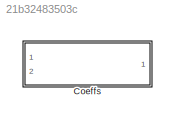
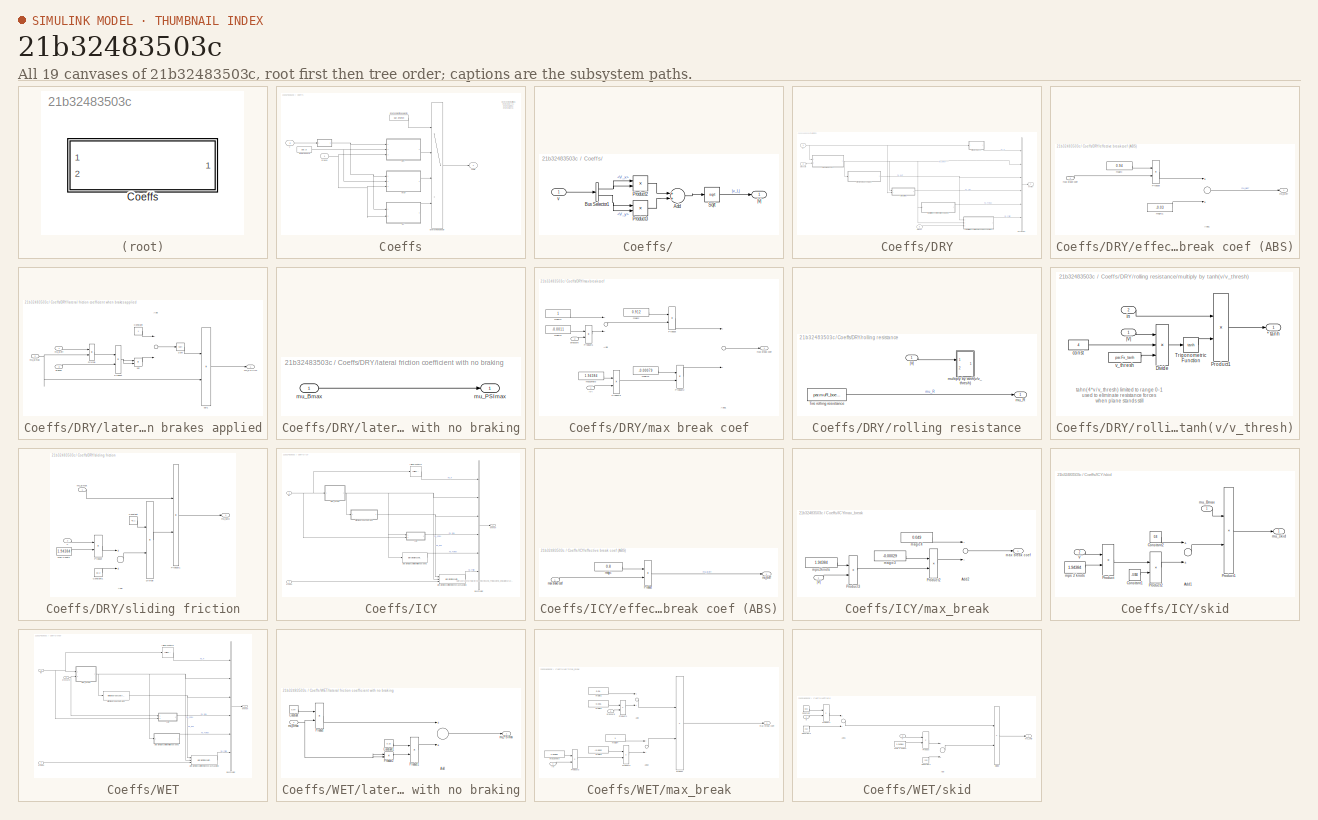
[diagram: thumbnail index - all 19 canvases of the model, root first then tree order]
MODEL slx_21b32483503c
KIND library
BLOCK [SubSystem] Coeffs
  FunctionWithSeparateData = off
  MaskHideContents = off
  MinAlgLoopOccurrences = off
  Opaque = off
  Ports = [2, 1]
  PropExecContextOutsideSubsystem = off
  RTWSystemCode = Auto
  RequestExecContextInheritance = off
BLOCK [SubSystem] Coeffs/   
  FunctionWithSeparateData = off
  MaskHideContents = off
  MinAlgLoopOccurrences = off
  Opaque = off
  Ports = [1, 1]
  PropExecContextOutsideSubsystem = off
  RTWSystemCode = Auto
  RequestExecContextInheritance = off
BLOCK [Sum] Coeffs/   /Add
  InputSameDT = off
  OutDataTypeStr = Inherit: Inherit via internal rule
  Ports = [2, 1]
  SaturateOnIntegerOverflow = off
BLOCK [BusSelector] Coeffs/   /Bus Selector1
  OutputSignals = V_x,V_y
  Ports = [1, 2]
BLOCK [Product] Coeffs/   /Product2
  InputSameDT = off
  OutDataTypeStr = Inherit: Inherit via internal rule
  Ports = [2, 1]
  RndMeth = Floor
  SaturateOnIntegerOverflow = off
BLOCK [Product] Coeffs/   /Product3
  InputSameDT = off
  OutDataTypeStr = Inherit: Inherit via internal rule
  Ports = [2, 1]
  RndMeth = Floor
  SaturateOnIntegerOverflow = off
BLOCK [Sqrt] Coeffs/   /Sqrt
BLOCK [Inport] Coeffs/   /v
  IconDisplay = Port number
BLOCK [Outport] Coeffs/   /|v|
  IconDisplay = Port number
BLOCK [SubSystem] Coeffs/DRY
  FunctionWithSeparateData = off
  MaskHideContents = off
  MinAlgLoopOccurrences = off
  Opaque = off
  Ports = [3, 1]
  PropExecContextOutsideSubsystem = off
  RTWSystemCode = Auto
  RequestExecContextInheritance = off
BLOCK [BusCreator] Coeffs/DRY/Bus Creator
  DisplayOption = bar
  Inputs = 6
  Ports = [6, 1]
BLOCK [Inport] Coeffs/DRY/brakes
  IconDisplay = Port number
  Port = 3
BLOCK [SubSystem] Coeffs/DRY/effective break coef (ABS)
  FunctionWithSeparateData = off
  MaskHideContents = off
  MinAlgLoopOccurrences = off
  Opaque = off
  Ports = [1, 1]
  PropExecContextOutsideSubsystem = off
  RTWSystemCode = Auto
  RequestExecContextInheritance = off
BLOCK [Sum] Coeffs/DRY/effective break coef (ABS)/Add1
  InputSameDT = off
  OutDataTypeStr = Inherit: Inherit via internal rule
  Ports = [2, 1]
  SaturateOnIntegerOverflow = off
BLOCK [Product] Coeffs/DRY/effective break coef (ABS)/Product
  InputSameDT = off
  OutDataTypeStr = Inherit: Inherit via internal rule
  Ports = [2, 1]
  RndMeth = Floor
  SaturateOnIntegerOverflow = off
BLOCK [Constant] Coeffs/DRY/effective break coef (ABS)/magic
  Value = 0.94
BLOCK [Constant] Coeffs/DRY/effective break coef (ABS)/magic1
  Value = -0.03
BLOCK [Inport] Coeffs/DRY/effective break coef (ABS)/max brake coef
  IconDisplay = Port number
BLOCK [Outport] Coeffs/DRY/effective break coef (ABS)/mu_Beff
  IconDisplay = Port number
BLOCK [Outport] Coeffs/DRY/environ
  IconDisplay = Port number
BLOCK [SubSystem] Coeffs/DRY/lateral friction coefficient when brakes applied
  FunctionWithSeparateData = off
  MaskHideContents = off
  MinAlgLoopOccurrences = off
  Opaque = off
  Ports = [3, 1]
  PropExecContextOutsideSubsystem = off
  RTWSystemCode = Auto
  RequestExecContextInheritance = off
BLOCK [Sum] Coeffs/DRY/lateral friction coefficient when brakes applied/Add
  InputSameDT = off
  Inputs = +-
  OutDataTypeStr = Inherit: Inherit via internal rule
  Ports = [2, 1]
  SaturateOnIntegerOverflow = off
BLOCK [Constant] Coeffs/DRY/lateral friction coefficient when brakes applied/Constant
BLOCK [Product] Coeffs/DRY/lateral friction coefficient when brakes applied/Divide
  InputSameDT = off
  Inputs = */
  OutDataTypeStr = Inherit: Inherit via internal rule
  Ports = [2, 1]
  RndMeth = Floor
  SaturateOnIntegerOverflow = off
BLOCK [Product] Coeffs/DRY/lateral friction coefficient when brakes applied/Product
  InputSameDT = off
  OutDataTypeStr = Inherit: Inherit via internal rule
  Ports = [2, 1]
  RndMeth = Floor
  SaturateOnIntegerOverflow = off
BLOCK [Sqrt] Coeffs/DRY/lateral friction coefficient when brakes applied/Sqrt
BLOCK [Inport] Coeffs/DRY/lateral friction coefficient when brakes applied/brakes
  IconDisplay = Port number
  Port = 3
BLOCK [Inport] Coeffs/DRY/lateral friction coefficient when brakes applied/mu_Beff
  IconDisplay = Port number
BLOCK [Inport] Coeffs/DRY/lateral friction coefficient when brakes applied/mu_Bmax
  IconDisplay = Port number
  Port = 2
BLOCK [Outport] Coeffs/DRY/lateral friction coefficient when brakes applied/mu_PSIlim
  IconDisplay = Port number
BLOCK [Product] Coeffs/DRY/lateral friction coefficient when brakes applied/sqr
  InputSameDT = off
  OutDataTypeStr = Inherit: Inherit via internal rule
  Ports = [2, 1]
  RndMeth = Floor
  SaturateOnIntegerOverflow = off
BLOCK [Product] Coeffs/DRY/lateral friction coefficient when brakes applied/sqr1
  InputSameDT = off
  OutDataTypeStr = Inherit: Inherit via internal rule
  Ports = [2, 1]
  RndMeth = Floor
  SaturateOnIntegerOverflow = off
BLOCK [SubSystem] Coeffs/DRY/lateral friction coefficient with no braking
  FunctionWithSeparateData = off
  MaskHideContents = off
  MinAlgLoopOccurrences = off
  Opaque = off
  Ports = [1, 1]
  PropExecContextOutsideSubsystem = off
  RTWSystemCode = Auto
  RequestExecContextInheritance = off
BLOCK [Inport] Coeffs/DRY/lateral friction coefficient with no braking/mu_Bmax
  IconDisplay = Port number
BLOCK [Outport] Coeffs/DRY/lateral friction coefficient with no braking/mu_PSImax
  IconDisplay = Port number
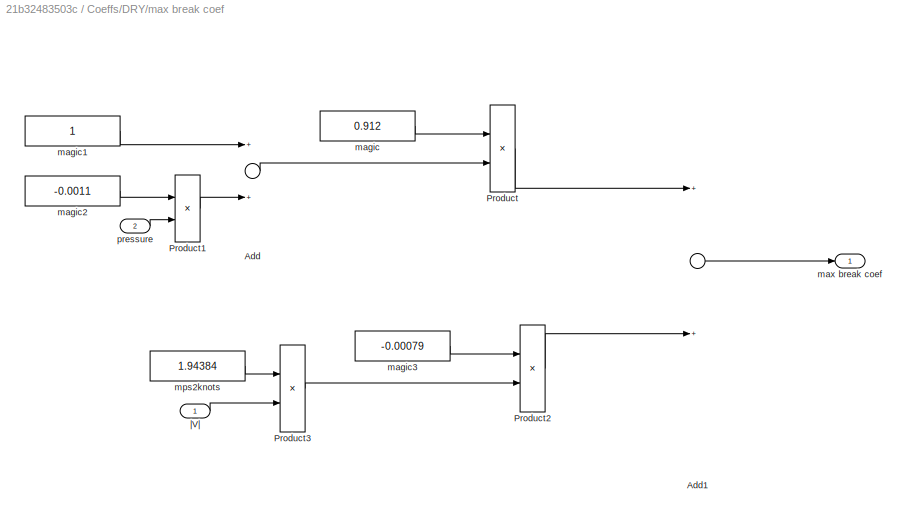
BLOCK [SubSystem] Coeffs/DRY/max break coef
  FunctionWithSeparateData = off
  MaskHideContents = off
  MinAlgLoopOccurrences = off
  Opaque = off
  Ports = [2, 1]
  PropExecContextOutsideSubsystem = off
  RTWSystemCode = Auto
  RequestExecContextInheritance = off
BLOCK [Sum] Coeffs/DRY/max break coef/Add
  InputSameDT = off
  OutDataTypeStr = Inherit: Inherit via internal rule
  Ports = [2, 1]
  SaturateOnIntegerOverflow = off
BLOCK [Sum] Coeffs/DRY/max break coef/Add1
  InputSameDT = off
  OutDataTypeStr = Inherit: Inherit via internal rule
  Ports = [2, 1]
  SaturateOnIntegerOverflow = off
BLOCK [Product] Coeffs/DRY/max break coef/Product
  InputSameDT = off
  OutDataTypeStr = Inherit: Inherit via internal rule
  Ports = [2, 1]
  RndMeth = Floor
  SaturateOnIntegerOverflow = off
BLOCK [Product] Coeffs/DRY/max break coef/Product1
  InputSameDT = off
  OutDataTypeStr = Inherit: Inherit via internal rule
  Ports = [2, 1]
  RndMeth = Floor
  SaturateOnIntegerOverflow = off
BLOCK [Product] Coeffs/DRY/max break coef/Product2
  InputSameDT = off
  OutDataTypeStr = Inherit: Inherit via internal rule
  Ports = [2, 1]
  RndMeth = Floor
  SaturateOnIntegerOverflow = off
BLOCK [Product] Coeffs/DRY/max break coef/Product3
  InputSameDT = off
  OutDataTypeStr = Inherit: Inherit via internal rule
  Ports = [2, 1]
  RndMeth = Floor
  SaturateOnIntegerOverflow = off
BLOCK [Constant] Coeffs/DRY/max break coef/magic
  Value = 0.912
BLOCK [Constant] Coeffs/DRY/max break coef/magic1
BLOCK [Constant] Coeffs/DRY/max break coef/magic2
  Value = -0.0011
BLOCK [Constant] Coeffs/DRY/max break coef/magic3
  Value = -0.00079
BLOCK [Outport] Coeffs/DRY/max break coef/max break coef
  IconDisplay = Port number
BLOCK [Constant] Coeffs/DRY/max break coef/mps2knots
  Value = 1.94384
BLOCK [Inport] Coeffs/DRY/max break coef/pressure
  IconDisplay = Port number
  Port = 2
BLOCK [Inport] Coeffs/DRY/max break coef/|V|
  IconDisplay = Port number
BLOCK [Inport] Coeffs/DRY/pressure
  IconDisplay = Port number
  Port = 2
BLOCK [SubSystem] Coeffs/DRY/rolling resistance
  FunctionWithSeparateData = off
  MaskHideContents = off
  MinAlgLoopOccurrences = off
  Opaque = off
  Ports = [1, 1]
  PropExecContextOutsideSubsystem = off
  RTWSystemCode = Auto
  RequestExecContextInheritance = off
BLOCK [Constant] Coeffs/DRY/rolling resistance/Tire rolling resistance
  Value = par.muR_boeing
BLOCK [Outport] Coeffs/DRY/rolling resistance/mu_R
  IconDisplay = Port number
BLOCK [SubSystem] Coeffs/DRY/rolling resistance/multiply by tanh(v//v_thresh)
  Commented = on
  FunctionWithSeparateData = off
  MaskHideContents = off
  MinAlgLoopOccurrences = off
  Opaque = off
  Ports = [2, 1]
  PropExecContextOutsideSubsystem = off
  RTWSystemCode = Auto
  RequestExecContextInheritance = off
BLOCK [Outport] Coeffs/DRY/rolling resistance/multiply by tanh(v//v_thresh)/* tanh
  IconDisplay = Port number
BLOCK [Product] Coeffs/DRY/rolling resistance/multiply by tanh(v//v_thresh)/Divide
  InputSameDT = off
  Inputs = **/
  OutDataTypeStr = Inherit: Inherit via internal rule
  Ports = [3, 1]
  RndMeth = Floor
  SaturateOnIntegerOverflow = off
BLOCK [Product] Coeffs/DRY/rolling resistance/multiply by tanh(v//v_thresh)/Product1
  InputSameDT = off
  OutDataTypeStr = Inherit: Inherit via internal rule
  Ports = [2, 1]
  RndMeth = Floor
  SaturateOnIntegerOverflow = off
BLOCK [Trigonometry] Coeffs/DRY/rolling resistance/multiply by tanh(v//v_thresh)/Trigonometric Function
  Operator = tanh
  Ports = [1, 1]
BLOCK [Constant] Coeffs/DRY/rolling resistance/multiply by tanh(v//v_thresh)/const
  Value = 4
BLOCK [Inport] Coeffs/DRY/rolling resistance/multiply by tanh(v//v_thresh)/in
  IconDisplay = Port number
  Port = 2
BLOCK [Constant] Coeffs/DRY/rolling resistance/multiply by tanh(v//v_thresh)/v_thresh
  Value = par.Fx_tanh
BLOCK [Inport] Coeffs/DRY/rolling resistance/multiply by tanh(v//v_thresh)/|V|
  IconDisplay = Port number
BLOCK [Inport] Coeffs/DRY/rolling resistance/|V|
  IconDisplay = Port number
BLOCK [SubSystem] Coeffs/DRY/sliding friction
  FunctionWithSeparateData = off
  MaskHideContents = off
  MinAlgLoopOccurrences = off
  Opaque = off
  Ports = [2, 1]
  PropExecContextOutsideSubsystem = off
  RTWSystemCode = Auto
  RequestExecContextInheritance = off
BLOCK [Sum] Coeffs/DRY/sliding friction/Add
  InputSameDT = off
  OutDataTypeStr = Inherit: Inherit via internal rule
  Ports = [2, 1]
  SaturateOnIntegerOverflow = off
BLOCK [Constant] Coeffs/DRY/sliding friction/Constant
  Value = 48.1
BLOCK [Constant] Coeffs/DRY/sliding friction/Constant1
  Value = 50.2
BLOCK [Product] Coeffs/DRY/sliding friction/Divide
  InputSameDT = off
  Inputs = */
  OutDataTypeStr = Inherit: Inherit via internal rule
  Ports = [2, 1]
BLOCK [Product] Coeffs/DRY/sliding friction/Product
  InputSameDT = off
  OutDataTypeStr = Inherit: Inherit via internal rule
  Ports = [2, 1]
  RndMeth = Floor
  SaturateOnIntegerOverflow = off
BLOCK [Product] Coeffs/DRY/sliding friction/Product1
  InputSameDT = off
  OutDataTypeStr = Inherit: Inherit via internal rule
  Ports = [2, 1]
  RndMeth = Floor
  SaturateOnIntegerOverflow = off
BLOCK [Inport] Coeffs/DRY/sliding friction/V
  IconDisplay = Port number
  Port = 2
BLOCK [Constant] Coeffs/DRY/sliding friction/mps 2 knots
  Value = 1.94384
BLOCK [Inport] Coeffs/DRY/sliding friction/mu_Bmax
  IconDisplay = Port number
BLOCK [Outport] Coeffs/DRY/sliding friction/mu_skid
  IconDisplay = Port number
BLOCK [Inport] Coeffs/DRY/|V|
  IconDisplay = Port number
BLOCK [MultiPortSwitch] Coeffs/Environment selector
  InputSameDT = off
  Ports = [4, 1]
  SaturateOnIntegerOverflow = off
BLOCK [Constant] Coeffs/Environment type selector
  Value = par.environ
BLOCK [SubSystem] Coeffs/ICY
  FunctionWithSeparateData = off
  MaskHideContents = off
  MinAlgLoopOccurrences = off
  Opaque = off
  Ports = [2, 1]
  PropExecContextOutsideSubsystem = off
  RTWSystemCode = Auto
  RequestExecContextInheritance = off
  TreatAsAtomicUnit = on
BLOCK [BusCreator] Coeffs/ICY/Bus Creator
  DisplayOption = bar
  Inputs = 6
  Ports = [6, 1]
BLOCK [Inport] Coeffs/ICY/brakes
  IconDisplay = Port number
  Port = 2
BLOCK [SubSystem] Coeffs/ICY/effective break coef (ABS)
  FunctionWithSeparateData = off
  MaskHideContents = off
  MinAlgLoopOccurrences = off
  Opaque = off
  Ports = [1, 1]
  PropExecContextOutsideSubsystem = off
  RTWSystemCode = Auto
  RequestExecContextInheritance = off
  TreatAsAtomicUnit = on
BLOCK [Product] Coeffs/ICY/effective break coef (ABS)/Product
  InputSameDT = off
  OutDataTypeStr = Inherit: Inherit via internal rule
  Ports = [2, 1]
  RndMeth = Floor
  SaturateOnIntegerOverflow = off
BLOCK [Constant] Coeffs/ICY/effective break coef (ABS)/magic
  Value = 0.8
BLOCK [Inport] Coeffs/ICY/effective break coef (ABS)/max brake coef
  IconDisplay = Port number
BLOCK [Outport] Coeffs/ICY/effective break coef (ABS)/mu_Beff
  IconDisplay = Port number
BLOCK [Outport] Coeffs/ICY/environ
  IconDisplay = Port number
BLOCK [Reference] Coeffs/ICY/lateral friction coefficient when brakes applied  REF=coeffs/Coeffs/DRY/lateral friction coefficient  (lib defined in slx_21b32483503c)
when brakes applied
  Ports = [3, 1]
  SourceBlock = coeffs/Coeffs/DRY/lateral friction coefficient\nwhen brakes applied
  SourceType = SubSystem
BLOCK [Reference] Coeffs/ICY/lateral friction coefficient with no braking  REF=coeffs/Coeffs/WET/lateral friction coefficient  (lib defined in slx_21b32483503c)
with no braking
  Ports = [1, 1]
  SourceBlock = coeffs/Coeffs/WET/lateral friction coefficient\nwith no braking
  SourceType = SubSystem
BLOCK [SubSystem] Coeffs/ICY/max_break
  FunctionWithSeparateData = off
  MaskHideContents = off
  MinAlgLoopOccurrences = off
  Opaque = off
  Ports = [1, 1]
  PropExecContextOutsideSubsystem = off
  RTWSystemCode = Auto
  RequestExecContextInheritance = off
  TreatAsAtomicUnit = on
BLOCK [Sum] Coeffs/ICY/max_break/Add2
  InputSameDT = off
  OutDataTypeStr = Inherit: Inherit via internal rule
  Ports = [2, 1]
  SaturateOnIntegerOverflow = off
BLOCK [Product] Coeffs/ICY/max_break/Product2
  InputSameDT = off
  OutDataTypeStr = Inherit: Inherit via internal rule
  Ports = [2, 1]
  RndMeth = Floor
  SaturateOnIntegerOverflow = off
BLOCK [Product] Coeffs/ICY/max_break/Product3
  InputSameDT = off
  OutDataTypeStr = Inherit: Inherit via internal rule
  Ports = [2, 1]
  RndMeth = Floor
  SaturateOnIntegerOverflow = off
BLOCK [Constant] Coeffs/ICY/max_break/magic3
  Value = -0.00029
BLOCK [Constant] Coeffs/ICY/max_break/magic4
  Value = 0.049
BLOCK [Outport] Coeffs/ICY/max_break/max break coef
  IconDisplay = Port number
BLOCK [Constant] Coeffs/ICY/max_break/mps2knots
  Value = 1.94384
BLOCK [Inport] Coeffs/ICY/max_break/|V|
  IconDisplay = Port number
BLOCK [Reference] Coeffs/ICY/rolling resistance  REF=coeffs/Coeffs/DRY/rolling resistance  (lib defined in slx_21b32483503c)
  Ports = [1, 1]
  SourceBlock = coeffs/Coeffs/DRY/rolling resistance
  SourceType = SubSystem
BLOCK [SubSystem] Coeffs/ICY/skid
  FunctionWithSeparateData = off
  MaskHideContents = off
  MinAlgLoopOccurrences = off
  Opaque = off
  Ports = [2, 1]
  PropExecContextOutsideSubsystem = off
  RTWSystemCode = Auto
  RequestExecContextInheritance = off
  TreatAsAtomicUnit = on
BLOCK [Sum] Coeffs/ICY/skid/Add1
  InputSameDT = off
  OutDataTypeStr = Inherit: Inherit via internal rule
  Ports = [2, 1]
  SaturateOnIntegerOverflow = off
BLOCK [Constant] Coeffs/ICY/skid/Constant1
  Value = -0.004
BLOCK [Constant] Coeffs/ICY/skid/Constant2
  Value = 0.8
BLOCK [Product] Coeffs/ICY/skid/Product
  InputSameDT = off
  OutDataTypeStr = Inherit: Inherit via internal rule
  Ports = [2, 1]
  RndMeth = Floor
  SaturateOnIntegerOverflow = off
BLOCK [Product] Coeffs/ICY/skid/Product1
  InputSameDT = off
  OutDataTypeStr = Inherit: Inherit via internal rule
  Ports = [2, 1]
  RndMeth = Floor
  SaturateOnIntegerOverflow = off
BLOCK [Product] Coeffs/ICY/skid/Product2
  InputSameDT = off
  OutDataTypeStr = Inherit: Inherit via internal rule
  Ports = [2, 1]
  RndMeth = Floor
  SaturateOnIntegerOverflow = off
BLOCK [Inport] Coeffs/ICY/skid/V
  IconDisplay = Port number
  Port = 2
BLOCK [Constant] Coeffs/ICY/skid/mps 2 knots
  Value = 1.94384
BLOCK [Inport] Coeffs/ICY/skid/mu_Bmax
  IconDisplay = Port number
BLOCK [Outport] Coeffs/ICY/skid/mu_skid
  IconDisplay = Port number
BLOCK [Inport] Coeffs/ICY/|V|
  IconDisplay = Port number
BLOCK [Constant] Coeffs/Tire pressure
  Value = par.p
BLOCK [Inport] Coeffs/V
  IconDisplay = Port number
  Port = 2
BLOCK [SubSystem] Coeffs/WET
  FunctionWithSeparateData = off
  MaskHideContents = off
  MinAlgLoopOccurrences = off
  Opaque = off
  Ports = [3, 1]
  PropExecContextOutsideSubsystem = off
  RTWSystemCode = Auto
  RequestExecContextInheritance = off
BLOCK [BusCreator] Coeffs/WET/Bus Creator
  DisplayOption = bar
  Inputs = 6
  Ports = [6, 1]
BLOCK [Inport] Coeffs/WET/brakes
  IconDisplay = Port number
  Port = 3
BLOCK [Reference] Coeffs/WET/effective break coef (ABS)  REF=coeffs/Coeffs/DRY/effective break coef (ABS)  (lib defined in slx_21b32483503c)
  Ports = [1, 1]
  SourceBlock = coeffs/Coeffs/DRY/effective break coef (ABS)
  SourceType = SubSystem
BLOCK [Outport] Coeffs/WET/environ
  IconDisplay = Port number
BLOCK [Reference] Coeffs/WET/lateral friction coefficient when brakes applied  REF=coeffs/Coeffs/DRY/lateral friction coefficient  (lib defined in slx_21b32483503c)
when brakes applied
  Ports = [3, 1]
  SourceBlock = coeffs/Coeffs/DRY/lateral friction coefficient\nwhen brakes applied
  SourceType = SubSystem
BLOCK [SubSystem] Coeffs/WET/lateral friction coefficient with no braking
  FunctionWithSeparateData = off
  MaskHideContents = off
  MinAlgLoopOccurrences = off
  Opaque = off
  Ports = [1, 1]
  PropExecContextOutsideSubsystem = off
  RTWSystemCode = Auto
  RequestExecContextInheritance = off
  TreatAsAtomicUnit = on
BLOCK [Sum] Coeffs/WET/lateral friction coefficient with no braking/Add
  InputSameDT = off
  OutDataTypeStr = Inherit: Inherit via internal rule
  Ports = [2, 1]
  SaturateOnIntegerOverflow = off
BLOCK [Constant] Coeffs/WET/lateral friction coefficient with no braking/Constant
  Value = 0.64
BLOCK [Constant] Coeffs/WET/lateral friction coefficient with no braking/Constant1
  Value = 0.15
BLOCK [Product] Coeffs/WET/lateral friction coefficient with no braking/Product
  InputSameDT = off
  OutDataTypeStr = Inherit: Inherit via internal rule
  Ports = [2, 1]
  RndMeth = Floor
  SaturateOnIntegerOverflow = off
BLOCK [Product] Coeffs/WET/lateral friction coefficient with no braking/Product1
  InputSameDT = off
  OutDataTypeStr = Inherit: Inherit via internal rule
  Ports = [2, 1]
  RndMeth = Floor
  SaturateOnIntegerOverflow = off
BLOCK [Product] Coeffs/WET/lateral friction coefficient with no braking/Product2
  InputSameDT = off
  OutDataTypeStr = Inherit: Inherit via internal rule
  Ports = [2, 1]
  RndMeth = Floor
  SaturateOnIntegerOverflow = off
BLOCK [Inport] Coeffs/WET/lateral friction coefficient with no braking/mu_Bmax
  IconDisplay = Port number
BLOCK [Outport] Coeffs/WET/lateral friction coefficient with no braking/mu_PSImax 
  IconDisplay = Port number
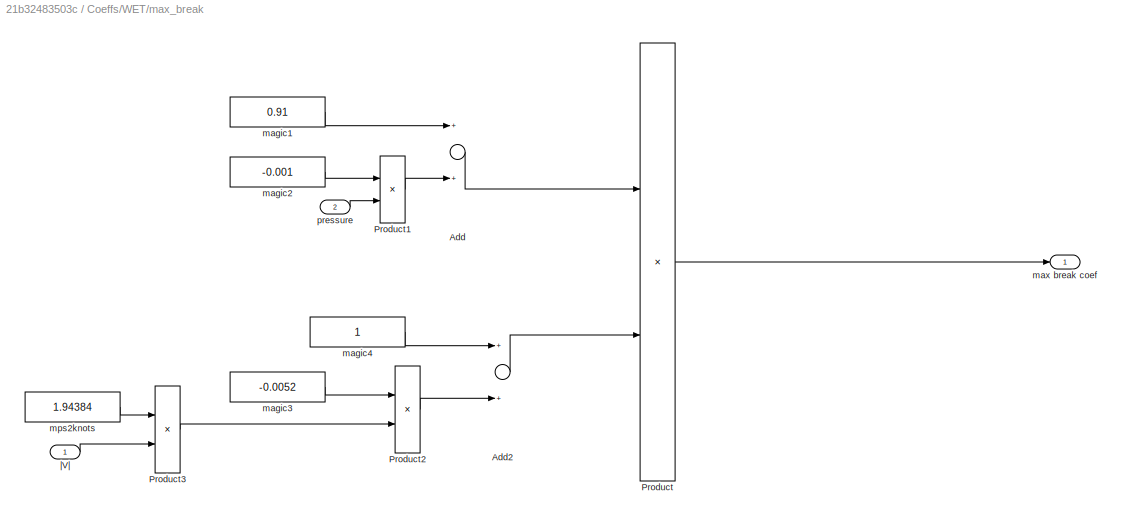
BLOCK [SubSystem] Coeffs/WET/max_break
  FunctionWithSeparateData = off
  MaskHideContents = off
  MinAlgLoopOccurrences = off
  Opaque = off
  Ports = [2, 1]
  PropExecContextOutsideSubsystem = off
  RTWSystemCode = Auto
  RequestExecContextInheritance = off
BLOCK [Sum] Coeffs/WET/max_break/Add
  InputSameDT = off
  OutDataTypeStr = Inherit: Inherit via internal rule
  Ports = [2, 1]
  SaturateOnIntegerOverflow = off
BLOCK [Sum] Coeffs/WET/max_break/Add2
  InputSameDT = off
  OutDataTypeStr = Inherit: Inherit via internal rule
  Ports = [2, 1]
  SaturateOnIntegerOverflow = off
BLOCK [Product] Coeffs/WET/max_break/Product
  InputSameDT = off
  OutDataTypeStr = Inherit: Inherit via internal rule
  Ports = [2, 1]
  RndMeth = Floor
  SaturateOnIntegerOverflow = off
BLOCK [Product] Coeffs/WET/max_break/Product1
  InputSameDT = off
  OutDataTypeStr = Inherit: Inherit via internal rule
  Ports = [2, 1]
  RndMeth = Floor
  SaturateOnIntegerOverflow = off
BLOCK [Product] Coeffs/WET/max_break/Product2
  InputSameDT = off
  OutDataTypeStr = Inherit: Inherit via internal rule
  Ports = [2, 1]
  RndMeth = Floor
  SaturateOnIntegerOverflow = off
BLOCK [Product] Coeffs/WET/max_break/Product3
  InputSameDT = off
  OutDataTypeStr = Inherit: Inherit via internal rule
  Ports = [2, 1]
  RndMeth = Floor
  SaturateOnIntegerOverflow = off
BLOCK [Constant] Coeffs/WET/max_break/magic1
  Value = 0.91
BLOCK [Constant] Coeffs/WET/max_break/magic2
  Value = -0.001
BLOCK [Constant] Coeffs/WET/max_break/magic3
  Value = -0.0052
BLOCK [Constant] Coeffs/WET/max_break/magic4
BLOCK [Outport] Coeffs/WET/max_break/max break coef
  IconDisplay = Port number
BLOCK [Constant] Coeffs/WET/max_break/mps2knots
  Value = 1.94384
BLOCK [Inport] Coeffs/WET/max_break/pressure
  IconDisplay = Port number
  Port = 2
BLOCK [Inport] Coeffs/WET/max_break/|V|
  IconDisplay = Port number
BLOCK [Inport] Coeffs/WET/pressure
  IconDisplay = Port number
  Port = 2
BLOCK [Reference] Coeffs/WET/rolling resistance  REF=coeffs/Coeffs/DRY/rolling resistance  (lib defined in slx_21b32483503c)
  Ports = [1, 1]
  SourceBlock = coeffs/Coeffs/DRY/rolling resistance
  SourceType = SubSystem
BLOCK [SubSystem] Coeffs/WET/skid
  FunctionWithSeparateData = off
  MaskHideContents = off
  MinAlgLoopOccurrences = off
  Opaque = off
  Ports = [2, 1]
  PropExecContextOutsideSubsystem = off
  RTWSystemCode = Auto
  RequestExecContextInheritance = off
  TreatAsAtomicUnit = on
BLOCK [Sum] Coeffs/WET/skid/Add
  InputSameDT = off
  OutDataTypeStr = Inherit: Inherit via internal rule
  Ports = [2, 1]
  SaturateOnIntegerOverflow = off
BLOCK [Sum] Coeffs/WET/skid/Add1
  InputSameDT = off
  OutDataTypeStr = Inherit: Inherit via internal rule
  Ports = [2, 1]
  SaturateOnIntegerOverflow = off
BLOCK [Constant] Coeffs/WET/skid/Constant
  Value = -0.03
BLOCK [Constant] Coeffs/WET/skid/Constant1
  Value = 26.5
BLOCK [Constant] Coeffs/WET/skid/Constant2
  Value = 23.2
BLOCK [Product] Coeffs/WET/skid/Divide
  InputSameDT = off
  Inputs = */
  OutDataTypeStr = Inherit: Inherit via internal rule
  Ports = [2, 1]
BLOCK [Product] Coeffs/WET/skid/Product
  InputSameDT = off
  OutDataTypeStr = Inherit: Inherit via internal rule
  Ports = [2, 1]
  RndMeth = Floor
  SaturateOnIntegerOverflow = off
BLOCK [Product] Coeffs/WET/skid/Product1
  InputSameDT = off
  OutDataTypeStr = Inherit: Inherit via internal rule
  Ports = [2, 1]
  RndMeth = Floor
  SaturateOnIntegerOverflow = off
BLOCK [Inport] Coeffs/WET/skid/V
  IconDisplay = Port number
  Port = 2
BLOCK [Constant] Coeffs/WET/skid/mps 2 knots
  Value = 1.94384
BLOCK [Outport] Coeffs/WET/skid/mu_skid
  IconDisplay = Port number
BLOCK [Inport] Coeffs/WET/skid/p
  IconDisplay = Port number
BLOCK [Inport] Coeffs/WET/|V|
  IconDisplay = Port number
BLOCK [Inport] Coeffs/brakes
  IconDisplay = Port number
BLOCK [Outport] Coeffs/coefs
  IconDisplay = Port number
ANNOTATION Coeffs: Environment settings environ.dry = 1; environ.wet = 2; environ.ice = 3;
ANNOTATION Coeffs/DRY/rolling resistance/multiply by tanh(v//v_thresh): tahn(4*v / v_thresh) limited to range 0-1 used to eliminate resistance forces when plane stands still
ANNOTATION Coeffs/ICY: v lateral+brakes by mal byt pred odmocninou mu_PSImax, nie mu_Bmax, je to spravne alebo iba preklep v reporte???
LINE Coeffs/   /Add:1 -> Coeffs/   /Sqrt:1
NET Coeffs/   /Bus Selector1:1 -> Coeffs/   /Product2:1, Coeffs/   /Product2:2
NET Coeffs/   /Bus Selector1:2 -> Coeffs/   /Product3:1, Coeffs/   /Product3:2
LINE Coeffs/   /Product2:1 -> Coeffs/   /Add:1
LINE Coeffs/   /Product3:1 -> Coeffs/   /Add:2
LINE Coeffs/   /Sqrt:1 -> Coeffs/   /|v|:1
LINE Coeffs/   /v:1 -> Coeffs/   /Bus Selector1:1
NET Coeffs/   :1 -> Coeffs/DRY:1, Coeffs/ICY:1, Coeffs/WET:1
LINE Coeffs/DRY/Bus Creator:1 -> Coeffs/DRY/environ:1
LINE Coeffs/DRY/brakes:1 -> Coeffs/DRY/lateral friction coefficient when brakes applied:3
LINE Coeffs/DRY/effective break coef (ABS)/Add1:1 -> Coeffs/DRY/effective break coef (ABS)/mu_Beff:1
LINE Coeffs/DRY/effective break coef (ABS)/Product:1 -> Coeffs/DRY/effective break coef (ABS)/Add1:1
LINE Coeffs/DRY/effective break coef (ABS)/magic1:1 -> Coeffs/DRY/effective break coef (ABS)/Add1:2
LINE Coeffs/DRY/effective break coef (ABS)/magic:1 -> Coeffs/DRY/effective break coef (ABS)/Product:1
LINE Coeffs/DRY/effective break coef (ABS)/max brake coef:1 -> Coeffs/DRY/effective break coef (ABS)/Product:2
NET Coeffs/DRY/effective break coef (ABS):1 -> Coeffs/DRY/Bus Creator:3, Coeffs/DRY/lateral friction coefficient when brakes applied:1
LINE Coeffs/DRY/lateral friction coefficient when brakes applied/Add:1 -> Coeffs/DRY/lateral friction coefficient when brakes applied/Sqrt:1
LINE Coeffs/DRY/lateral friction coefficient when brakes applied/Constant:1 -> Coeffs/DRY/lateral friction coefficient when brakes applied/Add:1
LINE Coeffs/DRY/lateral friction coefficient when brakes applied/Divide:1 -> Coeffs/DRY/lateral friction coefficient when brakes applied/Product:1
NET Coeffs/DRY/lateral friction coefficient when brakes applied/Product:1 -> Coeffs/DRY/lateral friction coefficient when brakes applied/sqr:1, Coeffs/DRY/lateral friction coefficient when brakes applied/sqr:2
LINE Coeffs/DRY/lateral friction coefficient when brakes applied/Sqrt:1 -> Coeffs/DRY/lateral friction coefficient when brakes applied/sqr1:1
LINE Coeffs/DRY/lateral friction coefficient when brakes applied/brakes:1 -> Coeffs/DRY/lateral friction coefficient when brakes applied/Product:2
LINE Coeffs/DRY/lateral friction coefficient when brakes applied/mu_Beff:1 -> Coeffs/DRY/lateral friction coefficient when brakes applied/Divide:1
NET Coeffs/DRY/lateral friction coefficient when brakes applied/mu_Bmax:1 -> Coeffs/DRY/lateral friction coefficient when brakes applied/Divide:2, Coeffs/DRY/lateral friction coefficient when brakes applied/sqr1:2
LINE Coeffs/DRY/lateral friction coefficient when brakes applied/sqr1:1 -> Coeffs/DRY/lateral friction coefficient when brakes applied/mu_PSIlim:1
LINE Coeffs/DRY/lateral friction coefficient when brakes applied/sqr:1 -> Coeffs/DRY/lateral friction coefficient when brakes applied/Add:2
LINE Coeffs/DRY/lateral friction coefficient when brakes applied:1 -> Coeffs/DRY/Bus Creator:6
LINE Coeffs/DRY/lateral friction coefficient with no braking/mu_Bmax:1 -> Coeffs/DRY/lateral friction coefficient with no braking/mu_PSImax:1
LINE Coeffs/DRY/lateral friction coefficient with no braking:1 -> Coeffs/DRY/Bus Creator:5
LINE Coeffs/DRY/max break coef/Add1:1 -> Coeffs/DRY/max break coef/max break coef:1
LINE Coeffs/DRY/max break coef/Add:1 -> Coeffs/DRY/max break coef/Product:2
LINE Coeffs/DRY/max break coef/Product1:1 -> Coeffs/DRY/max break coef/Add:2
LINE Coeffs/DRY/max break coef/Product2:1 -> Coeffs/DRY/max break coef/Add1:2
LINE Coeffs/DRY/max break coef/Product3:1 -> Coeffs/DRY/max break coef/Product2:2
LINE Coeffs/DRY/max break coef/Product:1 -> Coeffs/DRY/max break coef/Add1:1
LINE Coeffs/DRY/max break coef/magic1:1 -> Coeffs/DRY/max break coef/Add:1
LINE Coeffs/DRY/max break coef/magic2:1 -> Coeffs/DRY/max break coef/Product1:1
LINE Coeffs/DRY/max break coef/magic3:1 -> Coeffs/DRY/max break coef/Product2:1
LINE Coeffs/DRY/max break coef/magic:1 -> Coeffs/DRY/max break coef/Product:1
LINE Coeffs/DRY/max break coef/mps2knots:1 -> Coeffs/DRY/max break coef/Product3:1
LINE Coeffs/DRY/max break coef/pressure:1 -> Coeffs/DRY/max break coef/Product1:2
LINE Coeffs/DRY/max break coef/|V|:1 -> Coeffs/DRY/max break coef/Product3:2
NET Coeffs/DRY/max break coef:1 -> Coeffs/DRY/Bus Creator:2, Coeffs/DRY/effective break coef (ABS):1, Coeffs/DRY/lateral friction coefficient when brakes applied:2, Coeffs/DRY/lateral friction coefficient with no braking:1, Coeffs/DRY/sliding friction:1
LINE Coeffs/DRY/pressure:1 -> Coeffs/DRY/max break coef:2
LINE Coeffs/DRY/rolling resistance/Tire rolling resistance:1 -> Coeffs/DRY/rolling resistance/mu_R:1
LINE Coeffs/DRY/rolling resistance/multiply by tanh(v//v_thresh)/Divide:1 -> Coeffs/DRY/rolling resistance/multiply by tanh(v//v_thresh)/Trigonometric Function:1
LINE Coeffs/DRY/rolling resistance/multiply by tanh(v//v_thresh)/Product1:1 -> Coeffs/DRY/rolling resistance/multiply by tanh(v//v_thresh)/* tanh:1
LINE Coeffs/DRY/rolling resistance/multiply by tanh(v//v_thresh)/Trigonometric Function:1 -> Coeffs/DRY/rolling resistance/multiply by tanh(v//v_thresh)/Product1:2
LINE Coeffs/DRY/rolling resistance/multiply by tanh(v//v_thresh)/const:1 -> Coeffs/DRY/rolling resistance/multiply by tanh(v//v_thresh)/Divide:2
LINE Coeffs/DRY/rolling resistance/multiply by tanh(v//v_thresh)/in:1 -> Coeffs/DRY/rolling resistance/multiply by tanh(v//v_thresh)/Product1:1
LINE Coeffs/DRY/rolling resistance/multiply by tanh(v//v_thresh)/v_thresh:1 -> Coeffs/DRY/rolling resistance/multiply by tanh(v//v_thresh)/Divide:3
LINE Coeffs/DRY/rolling resistance/multiply by tanh(v//v_thresh)/|V|:1 -> Coeffs/DRY/rolling resistance/multiply by tanh(v//v_thresh)/Divide:1
LINE Coeffs/DRY/rolling resistance/|V|:1 -> Coeffs/DRY/rolling resistance/multiply by tanh(v//v_thresh):1
LINE Coeffs/DRY/rolling resistance:1 -> Coeffs/DRY/Bus Creator:1
LINE Coeffs/DRY/sliding friction/Add:1 -> Coeffs/DRY/sliding friction/Divide:2
LINE Coeffs/DRY/sliding friction/Constant1:1 -> Coeffs/DRY/sliding friction/Add:2
LINE Coeffs/DRY/sliding friction/Constant:1 -> Coeffs/DRY/sliding friction/Divide:1
LINE Coeffs/DRY/sliding friction/Divide:1 -> Coeffs/DRY/sliding friction/Product1:2
LINE Coeffs/DRY/sliding friction/Product1:1 -> Coeffs/DRY/sliding friction/mu_skid:1
LINE Coeffs/DRY/sliding friction/Product:1 -> Coeffs/DRY/sliding friction/Add:1
LINE Coeffs/DRY/sliding friction/V:1 -> Coeffs/DRY/sliding friction/Product:1
LINE Coeffs/DRY/sliding friction/mps 2 knots:1 -> Coeffs/DRY/sliding friction/Product:2
LINE Coeffs/DRY/sliding friction/mu_Bmax:1 -> Coeffs/DRY/sliding friction/Product1:1
LINE Coeffs/DRY/sliding friction:1 -> Coeffs/DRY/Bus Creator:4
NET Coeffs/DRY/|V|:1 -> Coeffs/DRY/max break coef:1, Coeffs/DRY/rolling resistance:1, Coeffs/DRY/sliding friction:2
LINE Coeffs/DRY:1 -> Coeffs/Environment selector:2
LINE Coeffs/Environment selector:1 -> Coeffs/coefs:1
LINE Coeffs/Environment type selector:1 -> Coeffs/Environment selector:1
LINE Coeffs/ICY/Bus Creator:1 -> Coeffs/ICY/environ:1
LINE Coeffs/ICY/brakes:1 -> Coeffs/ICY/lateral friction coefficient when brakes applied:3
LINE Coeffs/ICY/effective break coef (ABS)/Product:1 -> Coeffs/ICY/effective break coef (ABS)/mu_Beff:1
LINE Coeffs/ICY/effective break coef (ABS)/magic:1 -> Coeffs/ICY/effective break coef (ABS)/Product:1
LINE Coeffs/ICY/effective break coef (ABS)/max brake coef:1 -> Coeffs/ICY/effective break coef (ABS)/Product:2
NET Coeffs/ICY/effective break coef (ABS):1 -> Coeffs/ICY/Bus Creator:3, Coeffs/ICY/lateral friction coefficient when brakes applied:1
LINE Coeffs/ICY/lateral friction coefficient when brakes applied:1 -> Coeffs/ICY/Bus Creator:6
LINE Coeffs/ICY/lateral friction coefficient with no braking:1 -> Coeffs/ICY/Bus Creator:5
LINE Coeffs/ICY/max_break/Add2:1 -> Coeffs/ICY/max_break/max break coef:1
LINE Coeffs/ICY/max_break/Product2:1 -> Coeffs/ICY/max_break/Add2:2
LINE Coeffs/ICY/max_break/Product3:1 -> Coeffs/ICY/max_break/Product2:2
LINE Coeffs/ICY/max_break/magic3:1 -> Coeffs/ICY/max_break/Product2:1
LINE Coeffs/ICY/max_break/magic4:1 -> Coeffs/ICY/max_break/Add2:1
LINE Coeffs/ICY/max_break/mps2knots:1 -> Coeffs/ICY/max_break/Product3:1
LINE Coeffs/ICY/max_break/|V|:1 -> Coeffs/ICY/max_break/Product3:2
NET Coeffs/ICY/max_break:1 -> Coeffs/ICY/Bus Creator:2, Coeffs/ICY/effective break coef (ABS):1, Coeffs/ICY/lateral friction coefficient when brakes applied:2, Coeffs/ICY/lateral friction coefficient with no braking:1, Coeffs/ICY/skid:1
LINE Coeffs/ICY/rolling resistance:1 -> Coeffs/ICY/Bus Creator:1
LINE Coeffs/ICY/skid/Add1:1 -> Coeffs/ICY/skid/Product1:2
LINE Coeffs/ICY/skid/Constant1:1 -> Coeffs/ICY/skid/Product2:2
LINE Coeffs/ICY/skid/Constant2:1 -> Coeffs/ICY/skid/Add1:1
LINE Coeffs/ICY/skid/Product1:1 -> Coeffs/ICY/skid/mu_skid:1
LINE Coeffs/ICY/skid/Product2:1 -> Coeffs/ICY/skid/Add1:2
LINE Coeffs/ICY/skid/Product:1 -> Coeffs/ICY/skid/Product2:1
LINE Coeffs/ICY/skid/V:1 -> Coeffs/ICY/skid/Product:1
LINE Coeffs/ICY/skid/mps 2 knots:1 -> Coeffs/ICY/skid/Product:2
LINE Coeffs/ICY/skid/mu_Bmax:1 -> Coeffs/ICY/skid/Product1:1
LINE Coeffs/ICY/skid:1 -> Coeffs/ICY/Bus Creator:4
NET Coeffs/ICY/|V|:1 -> Coeffs/ICY/max_break:1, Coeffs/ICY/rolling resistance:1, Coeffs/ICY/skid:2
LINE Coeffs/ICY:1 -> Coeffs/Environment selector:4
NET Coeffs/Tire pressure:1 -> Coeffs/DRY:2, Coeffs/WET:2
LINE Coeffs/V:1 -> Coeffs/   :1
LINE Coeffs/WET/Bus Creator:1 -> Coeffs/WET/environ:1
LINE Coeffs/WET/brakes:1 -> Coeffs/WET/lateral friction coefficient when brakes applied:3
NET Coeffs/WET/effective break coef (ABS):1 -> Coeffs/WET/Bus Creator:3, Coeffs/WET/lateral friction coefficient when brakes applied:1
LINE Coeffs/WET/lateral friction coefficient when brakes applied:1 -> Coeffs/WET/Bus Creator:6
LINE Coeffs/WET/lateral friction coefficient with no braking/Add:1 -> Coeffs/WET/lateral friction coefficient with no braking/mu_PSImax :1
LINE Coeffs/WET/lateral friction coefficient with no braking/Constant1:1 -> Coeffs/WET/lateral friction coefficient with no braking/Product1:1
LINE Coeffs/WET/lateral friction coefficient with no braking/Constant:1 -> Coeffs/WET/lateral friction coefficient with no braking/Product:1
LINE Coeffs/WET/lateral friction coefficient with no braking/Product1:1 -> Coeffs/WET/lateral friction coefficient with no braking/Add:2
LINE Coeffs/WET/lateral friction coefficient with no braking/Product2:1 -> Coeffs/WET/lateral friction coefficient with no braking/Product1:2
LINE Coeffs/WET/lateral friction coefficient with no braking/Product:1 -> Coeffs/WET/lateral friction coefficient with no braking/Add:1
NET Coeffs/WET/lateral friction coefficient with no braking/mu_Bmax:1 -> Coeffs/WET/lateral friction coefficient with no braking/Product2:1, Coeffs/WET/lateral friction coefficient with no braking/Product2:2, Coeffs/WET/lateral friction coefficient with no braking/Product:2
LINE Coeffs/WET/lateral friction coefficient with no braking:1 -> Coeffs/WET/Bus Creator:5
LINE Coeffs/WET/max_break/Add2:1 -> Coeffs/WET/max_break/Product:2
LINE Coeffs/WET/max_break/Add:1 -> Coeffs/WET/max_break/Product:1
LINE Coeffs/WET/max_break/Product1:1 -> Coeffs/WET/max_break/Add:2
LINE Coeffs/WET/max_break/Product2:1 -> Coeffs/WET/max_break/Add2:2
LINE Coeffs/WET/max_break/Product3:1 -> Coeffs/WET/max_break/Product2:2
LINE Coeffs/WET/max_break/Product:1 -> Coeffs/WET/max_break/max break coef:1
LINE Coeffs/WET/max_break/magic1:1 -> Coeffs/WET/max_break/Add:1
LINE Coeffs/WET/max_break/magic2:1 -> Coeffs/WET/max_break/Product1:1
LINE Coeffs/WET/max_break/magic3:1 -> Coeffs/WET/max_break/Product2:1
LINE Coeffs/WET/max_break/magic4:1 -> Coeffs/WET/max_break/Add2:1
LINE Coeffs/WET/max_break/mps2knots:1 -> Coeffs/WET/max_break/Product3:1
LINE Coeffs/WET/max_break/pressure:1 -> Coeffs/WET/max_break/Product1:2
LINE Coeffs/WET/max_break/|V|:1 -> Coeffs/WET/max_break/Product3:2
NET Coeffs/WET/max_break:1 -> Coeffs/WET/Bus Creator:2, Coeffs/WET/effective break coef (ABS):1, Coeffs/WET/lateral friction coefficient when brakes applied:2, Coeffs/WET/lateral friction coefficient with no braking:1
NET Coeffs/WET/pressure:1 -> Coeffs/WET/max_break:2, Coeffs/WET/skid:1
LINE Coeffs/WET/rolling resistance:1 -> Coeffs/WET/Bus Creator:1
LINE Coeffs/WET/skid/Add1:1 -> Coeffs/WET/skid/Divide:1
LINE Coeffs/WET/skid/Add:1 -> Coeffs/WET/skid/Divide:2
LINE Coeffs/WET/skid/Constant1:1 -> Coeffs/WET/skid/Add:2
LINE Coeffs/WET/skid/Constant2:1 -> Coeffs/WET/skid/Add1:2
LINE Coeffs/WET/skid/Constant:1 -> Coeffs/WET/skid/Product1:1
LINE Coeffs/WET/skid/Divide:1 -> Coeffs/WET/skid/mu_skid:1
LINE Coeffs/WET/skid/Product1:1 -> Coeffs/WET/skid/Add1:1
LINE Coeffs/WET/skid/Product:1 -> Coeffs/WET/skid/Add:1
LINE Coeffs/WET/skid/V:1 -> Coeffs/WET/skid/Product:1
LINE Coeffs/WET/skid/mps 2 knots:1 -> Coeffs/WET/skid/Product:2
LINE Coeffs/WET/skid/p:1 -> Coeffs/WET/skid/Product1:2
LINE Coeffs/WET/skid:1 -> Coeffs/WET/Bus Creator:4
NET Coeffs/WET/|V|:1 -> Coeffs/WET/max_break:1, Coeffs/WET/rolling resistance:1, Coeffs/WET/skid:2
LINE Coeffs/WET:1 -> Coeffs/Environment selector:3
NET Coeffs/brakes:1 -> Coeffs/DRY:3, Coeffs/ICY:2, Coeffs/WET:3
note: NET lines group one-source signal fan-out (src -> all destinations, sorted); 1:1 wires keep LINE
